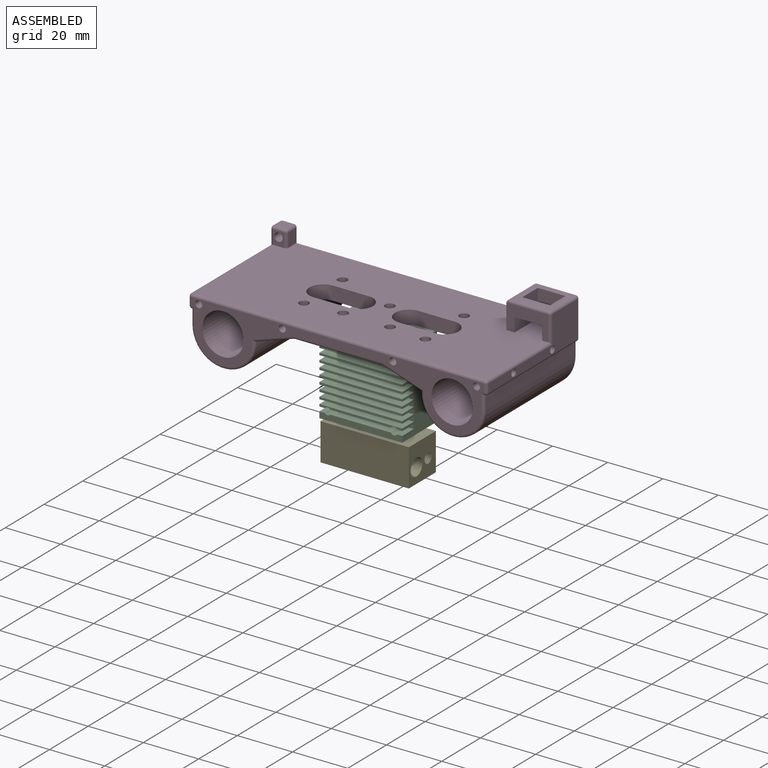
[diagram: assembled view]
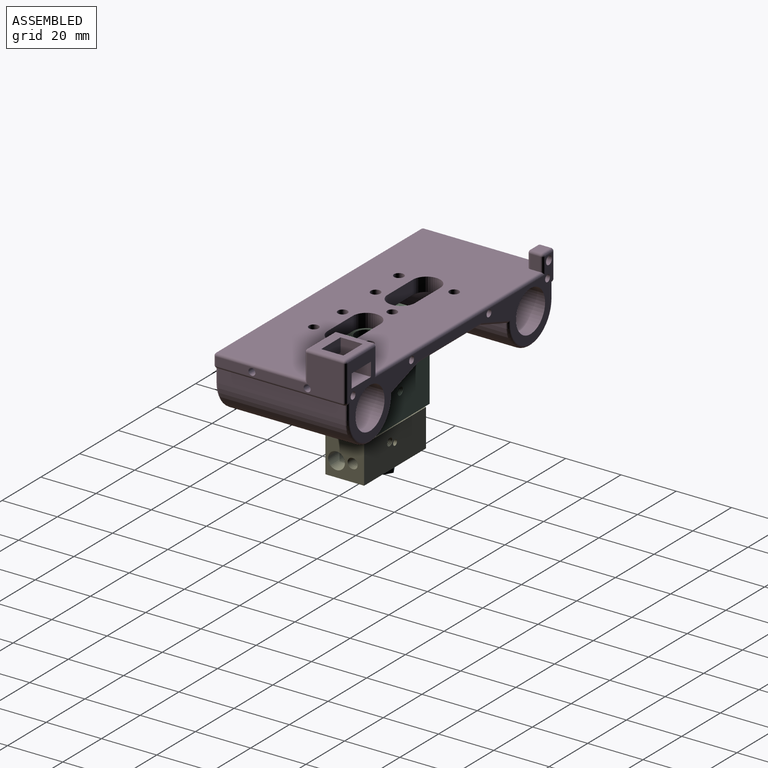
[diagram: assembled view, second angle]
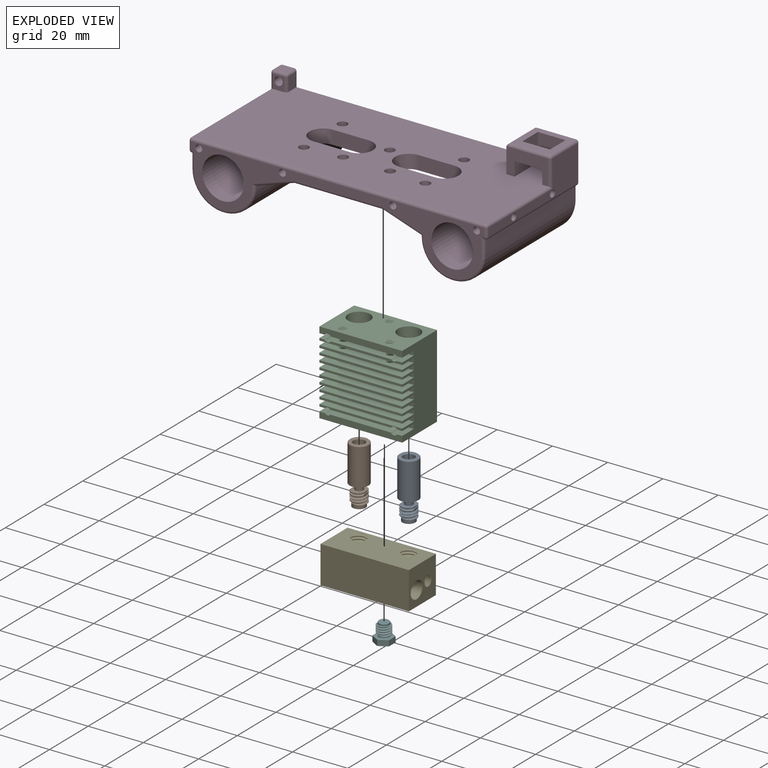
[diagram: exploded view]
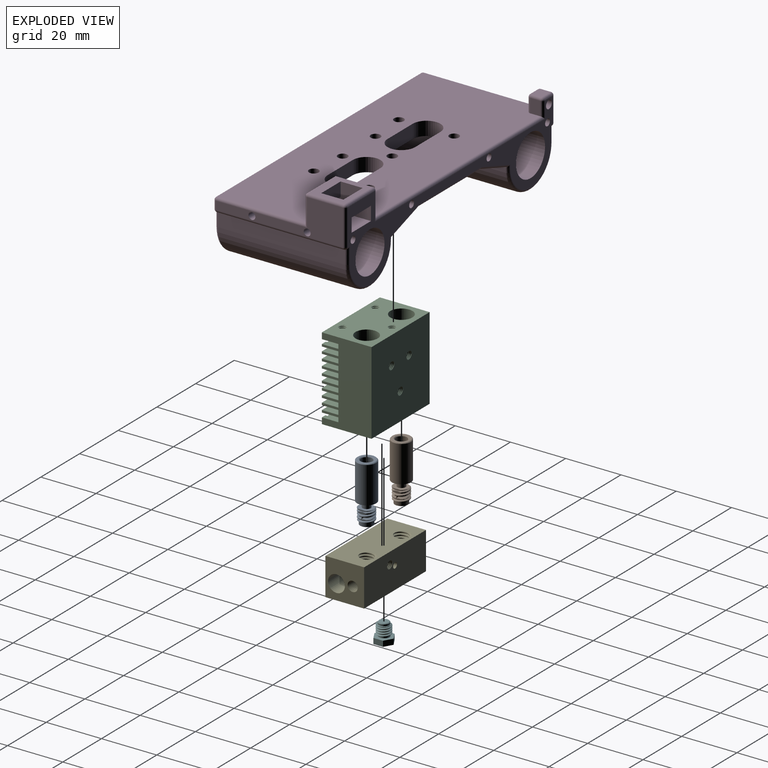
[diagram: exploded view, second angle]
ASSEMBLY  parts=6 mates=5
PART A: 30 faces, bbox 7.2x7.2x21.4 mm
  f0: plane 5.63x5.11mm, normal (0,0,1), area 14.5mm2, adj f2,f3,f6,f7,f11,f16,f17,f29
  f1: cylinder r=2.88mm len=5.76mm, axis (0,0,-1), area 13.9mm2, adj f5,f7,f12,f24,f25,f26,f28
  f2: cylinder r=2.88mm len=5mm, axis (0,0,-1), area 1.5mm2, adj f0,f5,f7,f27,f29
  f3: cylinder r=2.88mm len=0.59mm, axis (0,0,-1), area 0mm2, adj f0,f6,f29
  f4: cylinder r=2.88mm len=5mm, axis (0,0,-1), area 1.5mm2, adj f5,f7,f27,f28
  f5: bspline ~5.76x5.75mm, area 36.1mm2, adj f1,f2,f4,f6,f12,f13,f14,f15
  f6: bspline ~5.82x5.76mm, area 2.4mm2, adj f0,f3,f5,f16,f29
  f7: bspline ~5.76x5.75mm, area 35.7mm2, adj f0,f1,f2,f4,f13,f14,f15,f16
  f8: plane 6.4x6.4mm, normal (0,0,1), area 15.6mm2, adj f22,f23
  f9: cylinder r=3.45mm len=13.25mm, axis (0,0,-1), area 287.2mm2, adj f10,f22
  f10: plane 6.9x6.9mm, normal (0,0,-1), area 30.6mm2, adj f9,f11
  f11: cylinder r=1.47mm len=2.95mm, axis (0,0,-1), area 19.5mm2, adj f0,f10
  f12: plane 5.63x5.31mm, normal (0,0,-1), area 4.9mm2, adj f1,f5,f13,f24
  f13: cylinder r=2.34mm len=4.68mm, axis (0,0,-1), area 23.9mm2, adj f5,f7,f12,f14,f18,f24
  f14: cylinder r=2.34mm len=4.68mm, axis (0,0,-1), area 1.8mm2, adj f5,f7,f13,f15
  f15: cylinder r=2.34mm len=4.68mm, axis (0,0,-1), area 1.8mm2, adj f5,f7,f14,f16
  f16: cylinder r=2.34mm len=4.68mm, axis (0,0,-1), area 1.8mm2, adj f0,f5,f6,f7,f15,f17
  f17: cylinder r=2.34mm len=0.9mm, axis (0,0,-1), area 0mm2, adj f0,f7,f16
  f18: plane 4.68x4.68mm, normal (0,0,-1), area 14mm2, adj f13,f19
  f19: cylinder r=1mm len=16.49mm, axis (0,0,-1), area 103.6mm2, adj f18,f20
  f20: cone r=2.05mm half-angle=60deg, axis (0,0,1), area 11.6mm2, adj f19,f21
  f21: cylinder r=2.05mm len=4.1mm, axis (0,0,-1), area 48.3mm2, adj f20,f23
  f22: cone r=3.45mm half-angle=45deg, axis (0,0,-1), area 7.4mm2, adj f8,f9
  f23: cone r=2.3mm half-angle=45deg, axis (0,0,1), area 4.8mm2, adj f8,f21
  f24: bspline ~5.76x3.32mm, area 2.8mm2, adj f1,f7,f12,f13
  f25: plane 2.85x0.35mm, normal (-1,0,0), area 0.8mm2, adj f1,f7,f26
  f26: plane 2.85x0.38mm, normal (0,0,1), area 0.7mm2, adj f1,f25
  f27: plane 2.85x0.7mm, normal (-1,0,0), area 1.5mm2, adj f2,f4,f5,f7
  f28: plane 2.85x0.71mm, normal (1,0,0), area 1.5mm2, adj f1,f4,f5,f7
  f29: plane 2.85x0.35mm, normal (1,0,0), area 0.8mm2, adj f0,f2,f3,f5,f6
PART B: same geometry as A
PART C: 130 faces, bbox 30.1x18.3x30.4 mm
  f0: plane 30x18mm, normal (-1,0,0), area 434.4mm2, adj f1,f2,f3,f4,f5,f6,f7,f8
  f1: plane 30x0.8mm, normal (0,-1,0), area 22.4mm2, adj f0,f17,f66,f73,f77,f78,f79,f80
  f2: plane 30x0.8mm, normal (0,-1,0), area 24mm2, adj f0,f17,f63,f67
  f3: plane 30x0.8mm, normal (0,-1,0), area 24mm2, adj f0,f17,f120,f124
  f4: plane 30x0.8mm, normal (0,-1,0), area 24mm2, adj f0,f17,f117,f121
  f5: plane 30x0.8mm, normal (0,-1,0), area 24mm2, adj f0,f17,f114,f118
  f6: plane 30x0.8mm, normal (0,-1,0), area 24mm2, adj f0,f17,f111,f115
  f7: plane 30x0.8mm, normal (0,-1,0), area 22.4mm2, adj f0,f17,f94,f95,f101,f102,f103,f112
  f8: plane 30x2.2mm, normal (0,-1,0), area 64.4mm2, adj f0,f17,f18,f96,f97,f98,f99,f100
  f9: plane 30x0.8mm, normal (0,-1,0), area 24mm2, adj f0,f17,f105,f109
  f10: plane 30x0.8mm, normal (0,-1,0), area 24mm2, adj f0,f17,f64,f108
  f11: plane 30x0.8mm, normal (0,-1,0), area 24mm2, adj f0,f17,f106,f123
  f12: cylinder r=2.1mm len=6.52mm, axis (0,0,1), area 86mm2, adj f14,f41
  f13: cylinder r=2.1mm len=6.52mm, axis (0,0,1), area 86mm2, adj f15,f39
  f14: cone r=0mm half-angle=59deg, axis (0,0,1), area 42.5mm2, adj f12,f37
  f15: cone r=0mm half-angle=59deg, axis (0,0,1), area 42.5mm2, adj f13,f36
  f16: plane 30.14x18.14mm, normal (0,0,1), area 421.7mm2, adj f0,f17,f19,f20,f22,f23,f24,f27
  f17: plane 30x18mm, normal (1,0,0), area 434.4mm2, adj f1,f2,f3,f4,f5,f6,f7,f8
  f18: plane 30x18mm, normal (0,0,-1), area 463mm2, adj f0,f8,f17,f20,f38,f40
  f19: plane 30x2.2mm, normal (0,-1,0), area 64.4mm2, adj f0,f16,f17,f74,f75,f76,f81,f82
  f20: plane 30.14x30.14mm, normal (0,1,0), area 882.2mm2, adj f0,f16,f17,f18,f45,f46,f47,f50
  f21: cone r=0mm half-angle=59deg, axis (0,0,1), area 8.2mm2, adj f25,f26
  f22: bspline ~8.32x3.51mm, area 43.7mm2, adj f16,f24,f25,f26,f27
  f23: bspline ~8.41x3.51mm, area 43.5mm2, adj f16,f24,f25,f26,f27
  f24: bspline ~8.23x3.56mm, area 11.2mm2, adj f16,f22,f23,f25
  f25: plane 1.13x1.11mm, normal (0,0,1), area 0mm2, adj f21,f22,f23,f24
  f26: plane 3.12x3.12mm, normal (0,0,-1), area 1.2mm2, adj f21,f22,f23,f27
  f27: cylinder r=1.25mm len=8mm, axis (0,0,1), area 4.9mm2, adj f16,f22,f23,f26
  f28: bspline ~3.51x3.04mm, area 12mm2, adj f16,f30,f31,f74
  f29: bspline ~3.51x3.04mm, area 12mm2, adj f16,f30,f31,f74
  f30: bspline ~3.56x3.09mm, area 3.1mm2, adj f16,f28,f29,f74
  f31: cylinder r=1.25mm len=2.5mm, axis (0,0,1), area 4.4mm2, adj f16,f28,f29,f74
  f32: bspline ~3.51x3.04mm, area 12mm2, adj f16,f34,f35,f74
  f33: bspline ~3.51x3.04mm, area 12mm2, adj f16,f34,f35,f74
  f34: bspline ~3.56x3.09mm, area 3.1mm2, adj f16,f32,f33,f74
  f35: cylinder r=1.25mm len=2.5mm, axis (0,0,1), area 4.4mm2, adj f16,f32,f33,f74
  f36: cylinder r=4mm len=8mm, axis (0,0,1), area 188.5mm2, adj f15,f16
  f37: cylinder r=4mm len=8mm, axis (0,0,1), area 188.5mm2, adj f14,f16
  f38: cylinder r=3.5mm len=14mm, axis (0,0,-1), area 307.9mm2, adj f18,f39
  f39: cone r=0mm half-angle=59deg, axis (0,0,-1), area 28.7mm2, adj f13,f38
  f40: cylinder r=3.5mm len=14mm, axis (0,0,-1), area 307.9mm2, adj f18,f41
  f41: cone r=0mm half-angle=59deg, axis (0,0,-1), area 28.7mm2, adj f12,f40
  f42: cone r=0mm half-angle=59deg, axis (0,1,0), area 8.2mm2, adj f54,f55
  f43: cone r=0mm half-angle=59deg, axis (0,1,0), area 8.2mm2, adj f48,f49
  f44: cone r=0mm half-angle=59deg, axis (0,1,0), area 8.2mm2, adj f60,f61
  f45: bspline ~3.51x3.32mm, area 16.3mm2, adj f20,f47,f48,f49,f50
  f46: bspline ~3.51x3.41mm, area 16.3mm2, adj f20,f47,f48,f49,f50
  f47: bspline ~3.56x3.23mm, area 4.2mm2, adj f20,f45,f46,f48
  f48: plane 1.13x1.11mm, normal (0,1,0), area 0mm2, adj f43,f45,f46,f47
  f49: plane 3.12x3.12mm, normal (0,-1,0), area 1.2mm2, adj f43,f45,f46,f50
  f50: cylinder r=1.25mm len=3mm, axis (0,-1,0), area 6.1mm2, adj f20,f45,f46,f49
  f51: bspline ~3.51x3.32mm, area 16.3mm2, adj f20,f53,f54,f55,f56
  f52: bspline ~3.51x3.41mm, area 16.3mm2, adj f20,f53,f54,f55,f56
  f53: bspline ~3.56x3.23mm, area 4.2mm2, adj f20,f51,f52,f54
  f54: plane 1.13x1.11mm, normal (0,1,0), area 0mm2, adj f42,f51,f52,f53
  f55: plane 3.12x3.12mm, normal (0,-1,0), area 1.2mm2, adj f42,f51,f52,f56
  f56: cylinder r=1.25mm len=3mm, axis (0,-1,0), area 6.1mm2, adj f20,f51,f52,f55
  f57: bspline ~3.51x3.32mm, area 16.3mm2, adj f20,f59,f60,f61,f62
  f58: bspline ~3.51x3.41mm, area 16.3mm2, adj f20,f59,f60,f61,f62
  f59: bspline ~3.56x3.23mm, area 4.2mm2, adj f20,f57,f58,f60
  f60: plane 1.13x1.11mm, normal (0,1,0), area 0mm2, adj f44,f57,f58,f59
  f61: plane 3.12x3.12mm, normal (0,-1,0), area 1.2mm2, adj f44,f57,f58,f62
  f62: cylinder r=1.25mm len=3mm, axis (0,-1,0), area 6.1mm2, adj f20,f57,f58,f61
  f63: plane 30.14x6.14mm, normal (0,0,-1), area 168.1mm2, adj f0,f2,f17,f65,f84,f85,f86,f87
  f64: plane 30x6mm, normal (0,0,1), area 178.4mm2, adj f0,f10,f17,f65,f92,f93
  f65: plane 30x1.6mm, normal (0,-1,0), area 48mm2, adj f0,f17,f63,f64
  f66: plane 30.14x6.14mm, normal (0,0,-1), area 168.1mm2, adj f0,f1,f17,f68,f69,f70,f71,f72
  f67: plane 30.14x6.14mm, normal (0,0,1), area 168.1mm2, adj f0,f2,f17,f68,f84,f85,f86,f87
  f68: plane 30x1.6mm, normal (0,-1,0), area 48mm2, adj f0,f17,f66,f67
  f69: cylinder r=1.25mm len=2.5mm, axis (0,0,1), area 1.6mm2, adj f66,f71,f72,f73
  f70: bspline ~3.56x3.09mm, area 1.1mm2, adj f66,f71,f72,f73
  f71: bspline ~3.51x3.04mm, area 4.3mm2, adj f66,f69,f70,f73
  f72: bspline ~3.51x3.04mm, area 4.4mm2, adj f66,f69,f70,f73
  f73: plane 22.04x6.14mm, normal (0,0,1), area 119.5mm2, adj f1,f69,f70,f71,f72,f78,f79,f83
  f74: plane 22.03x6.14mm, normal (0,0,-1), area 119.5mm2, adj f19,f28,f29,f30,f31,f32,f33,f34
  f75: cylinder r=1.4mm len=6mm, axis (0,-1,0), area 16.2mm2, adj f19,f74,f76,f83
  f76: plane 6x1.85mm, normal (0,0,-1), area 11.1mm2, adj f0,f19,f75,f83
  f77: plane 6x1.85mm, normal (0,0,1), area 11.1mm2, adj f0,f1,f78,f83
  f78: cylinder r=1.4mm len=6mm, axis (0,-1,0), area 16.2mm2, adj f1,f73,f77,f83
  f79: cylinder r=1.25mm len=6mm, axis (0,-1,0), area 13.1mm2, adj f1,f73,f80,f83
  f80: plane 6x2.04mm, normal (0,0,1), area 12.2mm2, adj f1,f17,f79,f83
  f81: plane 6x2.04mm, normal (0,0,-1), area 12.2mm2, adj f17,f19,f82,f83
  f82: cylinder r=1.25mm len=6mm, axis (0,-1,0), area 13.1mm2, adj f19,f74,f81,f83
  f83: plane 30x2.8mm, normal (0,-1,0), area 51.1mm2, adj f0,f17,f73,f74,f75,f76,f77,f78
  f84: cylinder r=1.25mm len=2.5mm, axis (0,0,1), area 1.6mm2, adj f63,f67,f86,f87
  f85: bspline ~3.56x3.09mm, area 1.1mm2, adj f63,f67,f86,f87
  f86: bspline ~3.51x3.04mm, area 4.4mm2, adj f63,f67,f84,f85
  f87: bspline ~3.51x3.04mm, area 4.4mm2, adj f63,f67,f84,f85
  f88: cylinder r=1.25mm len=2.5mm, axis (0,0,1), area 1.6mm2, adj f66,f73,f90,f91
  f89: bspline ~3.56x3.09mm, area 1.1mm2, adj f66,f73,f90,f91
  f90: bspline ~3.51x3.04mm, area 4.3mm2, adj f66,f73,f88,f89
  f91: bspline ~3.51x3.04mm, area 4.4mm2, adj f66,f73,f88,f89
  f92: cone r=0mm half-angle=59deg, axis (0,0,1), area 0.9mm2, adj f64
  f93: cone r=0mm half-angle=59deg, axis (0,0,1), area 0.9mm2, adj f64
  f94: cylinder r=1.25mm len=6mm, axis (0,-1,0), area 13.1mm2, adj f7,f95,f103,f104
  f95: plane 6x2.04mm, normal (0,0,-1), area 12.2mm2, adj f0,f7,f94,f104
  f96: plane 6x2.04mm, normal (0,0,1), area 12.2mm2, adj f0,f8,f97,f104
  f97: cylinder r=1.25mm len=6mm, axis (0,-1,0), area 13.1mm2, adj f8,f96,f98,f104
  f98: plane 21.89x6mm, normal (0,0,1), area 131.3mm2, adj f8,f97,f99,f104
  f99: cylinder r=1.4mm len=6mm, axis (0,-1,0), area 16.2mm2, adj f8,f98,f100,f104
  f100: plane 6x1.85mm, normal (0,0,1), area 11.1mm2, adj f8,f17,f99,f104
  f101: plane 6x1.85mm, normal (0,0,-1), area 11.1mm2, adj f7,f17,f102,f104
  f102: cylinder r=1.4mm len=6mm, axis (0,-1,0), area 16.2mm2, adj f7,f101,f103,f104
  f103: plane 21.89x6mm, normal (0,0,-1), area 131.3mm2, adj f7,f94,f102,f104
  f104: plane 30x2.8mm, normal (0,-1,0), area 51.1mm2, adj f0,f17,f94,f95,f96,f97,f98,f99
  f105: plane 30x6mm, normal (0,0,-1), area 180mm2, adj f0,f9,f17,f107
  f106: plane 30x6mm, normal (0,0,1), area 180mm2, adj f0,f11,f17,f107
  f107: plane 30x1.6mm, normal (0,-1,0), area 48mm2, adj f0,f17,f105,f106
  f108: plane 30x6mm, normal (0,0,-1), area 180mm2, adj f0,f10,f17,f110
  f109: plane 30x6mm, normal (0,0,1), area 180mm2, adj f0,f9,f17,f110
  f110: plane 30x1.6mm, normal (0,-1,0), area 48mm2, adj f0,f17,f108,f109
  f111: plane 30x6mm, normal (0,0,-1), area 180mm2, adj f0,f6,f17,f113
  f112: plane 30x6mm, normal (0,0,1), area 180mm2, adj f0,f7,f17,f113
  f113: plane 30x1.6mm, normal (0,-1,0), area 48mm2, adj f0,f17,f111,f112
  f114: plane 30x6mm, normal (0,0,-1), area 180mm2, adj f0,f5,f17,f116
  f115: plane 30x6mm, normal (0,0,1), area 180mm2, adj f0,f6,f17,f116
  f116: plane 30x1.6mm, normal (0,-1,0), area 48mm2, adj f0,f17,f114,f115
  f117: plane 30x6mm, normal (0,0,-1), area 180mm2, adj f0,f4,f17,f119
  f118: plane 30x6mm, normal (0,0,1), area 180mm2, adj f0,f5,f17,f119
  f119: plane 30x1.6mm, normal (0,-1,0), area 48mm2, adj f0,f17,f117,f118
  f120: plane 30x6mm, normal (0,0,-1), area 180mm2, adj f0,f3,f17,f122
  f121: plane 30x6mm, normal (0,0,1), area 180mm2, adj f0,f4,f17,f122
  f122: plane 30x1.6mm, normal (0,-1,0), area 48mm2, adj f0,f17,f120,f121
  f123: plane 30x6mm, normal (0,0,-1), area 180mm2, adj f0,f11,f17,f125
  f124: plane 30x6mm, normal (0,0,1), area 180mm2, adj f0,f3,f17,f125
  f125: plane 30x1.6mm, normal (0,-1,0), area 48mm2, adj f0,f17,f123,f124
  f126: cylinder r=1.25mm len=2.5mm, axis (0,0,1), area 1.6mm2, adj f63,f67,f128,f129
  f127: bspline ~3.56x3.09mm, area 1.1mm2, adj f63,f67,f128,f129
  f128: bspline ~3.51x3.04mm, area 4.4mm2, adj f63,f67,f126,f127
  f129: bspline ~3.51x3.04mm, area 4.4mm2, adj f63,f67,f126,f127
PART D: 136 faces, bbox 108x32.4x48 mm
  f0: cylinder r=1.75mm len=5mm, axis (0,1,0), area 55mm2, adj f22,f23
  f1: cylinder r=1.75mm len=5mm, axis (0,1,0), area 55mm2, adj f22,f23
  f2: cylinder r=1.75mm len=5mm, axis (0,1,0), area 55mm2, adj f22,f23
  f3: cylinder r=1.75mm len=5mm, axis (0,1,0), area 55mm2, adj f22,f23
  f4: cylinder r=1.75mm len=5mm, axis (0,1,0), area 55mm2, adj f22,f23
  f5: cylinder r=1.75mm len=5mm, axis (0,1,0), area 55mm2, adj f22,f23
  f6: cylinder r=1.75mm len=5mm, axis (0,1,0), area 55mm2, adj f22,f23
  f7: cylinder r=1.25mm len=5mm, axis (1,0,0), area 39.3mm2, adj f24,f127
  f8: cylinder r=1.25mm len=5mm, axis (1,0,0), area 39.3mm2, adj f24,f126
  f9: cylinder r=1.25mm len=5mm, axis (-1,0,0), area 39.3mm2, adj f29,f125
  f10: cylinder r=1.25mm len=5mm, axis (-1,0,0), area 39.3mm2, adj f29,f124
  f11: cylinder r=1.25mm len=3.73mm, axis (0,0,1), area 29.3mm2, adj f25,f61
  f12: cylinder r=1.25mm len=3.73mm, axis (0,0,1), area 29.3mm2, adj f25,f60
  f13: cylinder r=1.25mm len=10mm, axis (0,0,-1), area 78.5mm2, adj f26,f59
  f14: cylinder r=1.25mm len=10mm, axis (0,0,-1), area 78.5mm2, adj f26,f58
  f15: cylinder r=1.25mm len=3.73mm, axis (0,0,-1), area 29.3mm2, adj f26,f53
  f16: cylinder r=1.25mm len=3.73mm, axis (0,0,-1), area 29.3mm2, adj f26,f52
  f17: cylinder r=1.25mm len=10mm, axis (0,0,1), area 78.5mm2, adj f25,f51
  f18: cylinder r=1.25mm len=10mm, axis (0,0,1), area 78.5mm2, adj f25,f50
  f19: cylinder r=1.5mm len=5.73mm, axis (0,0,-1), area 54mm2, adj f26,f41
  f20: cylinder r=7.5mm len=48mm, axis (0,0,-1), area 2261.9mm2, adj f25,f26
  f21: cylinder r=7.5mm len=48mm, axis (0,0,-1), area 2261.9mm2, adj f25,f26
  f22: plane 60x46mm, normal (0,-1,0), area 2166.3mm2, adj f0,f1,f2,f3,f4,f5,f6,f27
  f23: plane 106x47mm, normal (0,1,0), area 4308.2mm2, adj f0,f1,f2,f3,f4,f5,f6,f26
  f24: plane 46x13mm, normal (1,0,0), area 258.2mm2, adj f7,f8,f92,f97,f102,f103,f109,f110
  f25: plane 106x19.5mm, normal (0,0,1), area 616.7mm2, adj f11,f12,f17,f18,f20,f21,f89,f100
  f26: plane 106x29.5mm, normal (0,0,-1), area 723.6mm2, adj f13,f14,f15,f16,f19,f20,f21,f23
  f27: plane 46x5mm, normal (1,0,0), area 211.8mm2, adj f22,f31,f46,f47,f54,f55,f65,f111
  f28: plane 46x5mm, normal (-1,0,0), area 211.8mm2, adj f22,f32,f48,f49,f56,f57,f87,f119
  f29: plane 46x9mm, normal (-1,0,0), area 150.5mm2, adj f9,f10,f73,f78,f84,f88,f89,f90
  f30: plane 46x5mm, normal (-1,0,0), area 230mm2, adj f31,f71,f88,f105
  f31: cylinder r=11.5mm len=46mm, axis (0,0,-1), area 1661.9mm2, adj f27,f30,f66,f108
  f32: cylinder r=11.5mm len=46mm, axis (0,0,-1), area 1661.9mm2, adj f28,f33,f94,f118
  f33: plane 46x5mm, normal (1,0,0), area 230mm2, adj f32,f99,f110,f116
  f34: plane 14x9mm, normal (-1,0,0), area 126mm2, adj f23,f35,f80,f81
  f35: plane 15x9mm, normal (0,0,1), area 85mm2, adj f23,f34,f36,f38,f45,f85,f97
  f36: plane 15x10mm, normal (-1,0,0), area 115mm2, adj f23,f26,f35,f37,f39,f40,f44,f45
  f37: plane 10x5mm, normal (0,0,-1), area 50mm2, adj f36,f38,f40,f45
  f38: plane 15x10mm, normal (1,0,0), area 115mm2, adj f23,f26,f35,f37,f39,f40,f44,f45
  f39: plane 10x5mm, normal (0,0,1), area 50mm2, adj f36,f38,f40,f44
  f40: plane 14x13mm, normal (0,1,0), area 102mm2, adj f36,f37,f38,f39,f80,f85,f92,f93
  f41: plane 5x4mm, normal (0,0,1), area 12.9mm2, adj f19,f23,f63,f74,f84
  f42: plane 5x3.73mm, normal (1,0,0), area 18.6mm2, adj f23,f62,f63,f69
  f43: plane 4x3.73mm, normal (0,1,0), area 14.9mm2, adj f62,f67,f73,f74
  f44: plane 10x3mm, normal (0,-1,0), area 30mm2, adj f26,f36,f38,f39
  f45: plane 10x4mm, normal (0,-1,0), area 40mm2, adj f35,f36,f37,f38
  f46: plane 14x4.67mm, normal (0.32,-0.95,0), area 14.8mm2, adj f22,f27,f113,f122
  f47: plane 10.84x3.61mm, normal (0,0,-1), area 19.6mm2, adj f22,f27,f122
  f48: plane 14x4.67mm, normal (-0.32,-0.95,0), area 14.8mm2, adj f22,f28,f117,f123
  f49: plane 10.84x3.61mm, normal (0,0,-1), area 19.6mm2, adj f22,f28,f123
  f50: plane 2.5x2.5mm, normal (0,0,1), area 4.9mm2, adj f18
  f51: plane 2.5x2.5mm, normal (0,0,1), area 4.9mm2, adj f17
  f52: plane 2.5x2.5mm, normal (0,0,-1), area 4.9mm2, adj f16
  f53: plane 2.5x2.5mm, normal (0,0,-1), area 4.9mm2, adj f15
  f54: plane 14x4.67mm, normal (0.32,-0.95,0), area 14.8mm2, adj f22,f27,f70,f120
  f55: plane 10.84x3.61mm, normal (0,0,1), area 19.6mm2, adj f22,f27,f120
  f56: plane 14x4.67mm, normal (-0.32,-0.95,0), area 14.8mm2, adj f22,f28,f82,f121
  f57: plane 10.84x3.61mm, normal (0,0,1), area 19.6mm2, adj f22,f28,f121
  f58: plane 2.5x2.5mm, normal (0,0,-1), area 4.9mm2, adj f14
  f59: plane 2.5x2.5mm, normal (0,0,-1), area 4.9mm2, adj f13
  f60: plane 2.5x2.5mm, normal (0,0,1), area 4.9mm2, adj f12
  f61: plane 2.5x2.5mm, normal (0,0,1), area 4.9mm2, adj f11
  f62: cylinder r=1mm len=3.73mm, axis (0,0,1), area 5.9mm2, adj f42,f43,f64,f68
  f63: cylinder r=1mm len=5mm, axis (0,1,0), area 7.9mm2, adj f23,f41,f42,f68
  f64: sphere r=1mm, area 1.6mm2, adj f62,f67,f69
  f65: cylinder r=1mm len=1.05mm, axis (0,1,0), area 0.9mm2, adj f26,f27,f66,f70
  f66: torus R=10.5mm, axis (0,0,1), area 55mm2, adj f26,f31,f65,f71
  f67: cylinder r=1mm len=4mm, axis (1,0,0), area 6.3mm2, adj f26,f43,f64,f72
  f68: sphere r=1mm, area 1.6mm2, adj f62,f63,f74
  f69: cylinder r=1mm len=6mm, axis (0,-1,0), area 8.4mm2, adj f26,f42,f64,f75
  f70: cylinder r=1mm len=15.15mm, axis (0.95,0.32,0), area 23.7mm2, adj f26,f54,f65,f76
  f71: cylinder r=1mm len=6mm, axis (0,-1,0), area 8.4mm2, adj f26,f30,f66,f77
  f72: sphere r=1mm, area 1.6mm2, adj f67,f73,f78
  f73: cylinder r=1mm len=3.73mm, axis (0,0,-1), area 5.9mm2, adj f29,f43,f72,f79
  f74: cylinder r=1mm len=4mm, axis (-1,0,0), area 6.3mm2, adj f41,f43,f68,f79
  f75: cylinder r=1mm len=88mm, axis (-1,0,0), area 136.2mm2, adj f23,f26,f69,f81
  f76: cylinder r=1mm len=32.32mm, axis (1,0,0), area 50.5mm2, adj f22,f26,f70,f82
  f77: cylinder r=1mm len=1mm, axis (1,0,0), area 0.6mm2, adj f26,f71,f83
  f78: cylinder r=1mm len=9mm, axis (0,-1,0), area 14.1mm2, adj f26,f29,f72,f83
  f79: sphere r=1mm, area 1.6mm2, adj f73,f74,f84
  f80: cylinder r=1mm len=14mm, axis (0,0,-1), area 21.4mm2, adj f34,f40,f85,f86
  f81: cylinder r=1mm len=10mm, axis (0,1,0), area 14.7mm2, adj f26,f34,f75,f86
  f82: cylinder r=1mm len=15.15mm, axis (0.95,-0.32,0), area 23.7mm2, adj f26,f56,f76,f87
  f83: sphere r=1mm, area 1.6mm2, adj f77,f78,f88
  f84: cylinder r=1mm len=6mm, axis (0,1,0), area 8.4mm2, adj f29,f41,f79,f90
  f85: cylinder r=1mm len=15mm, axis (-1,0,0), area 23mm2, adj f35,f40,f80,f91
  f86: sphere r=1mm, area 1.6mm2, adj f80,f81,f93
  f87: cylinder r=1mm len=1.05mm, axis (0,-1,0), area 0.9mm2, adj f26,f28,f82,f94
  f88: cylinder r=1mm len=46mm, axis (0,0,-1), area 72.3mm2, adj f29,f30,f83,f95
  f89: cylinder r=1mm len=3mm, axis (0,-1,0), area 4.7mm2, adj f25,f29,f95,f96
  f90: cylinder r=1mm len=42.27mm, axis (0,0,1), area 65.4mm2, adj f23,f29,f84,f96
  f91: sphere r=1mm, area 1.6mm2, adj f85,f92,f97
  f92: cylinder r=1mm len=13mm, axis (0,0,1), area 20.4mm2, adj f24,f40,f91,f98
  f93: cylinder r=1mm len=14mm, axis (1,0,0), area 22mm2, adj f26,f40,f86,f98
  f94: torus R=10.5mm, axis (0,0,1), area 55mm2, adj f26,f32,f87,f99
  f95: sphere r=1mm, area 1.6mm2, adj f88,f89,f100
  f96: sphere r=1mm, area 1.6mm2, adj f89,f90,f101
  f97: cylinder r=1mm len=10mm, axis (0,-1,0), area 14.7mm2, adj f24,f35,f91,f102
  f98: sphere r=1mm, area 1.6mm2, adj f92,f93,f103
  f99: cylinder r=1mm len=6mm, axis (0,1,0), area 8.4mm2, adj f26,f33,f94,f104
  f100: cylinder r=1mm len=1mm, axis (-1,0,0), area 0.6mm2, adj f25,f95,f105
  f101: cylinder r=1mm len=106mm, axis (1,0,0), area 166.5mm2, adj f23,f25,f96,f106
  f102: cylinder r=1mm len=33mm, axis (0,0,-1), area 50.8mm2, adj f23,f24,f97,f106
  f103: cylinder r=1mm len=13mm, axis (0,-1,0), area 20.4mm2, adj f24,f26,f98,f107
  f104: cylinder r=1mm len=1mm, axis (1,0,0), area 0.6mm2, adj f26,f99,f107
  f105: cylinder r=1mm len=6mm, axis (0,-1,0), area 8.4mm2, adj f25,f30,f100,f108
  f106: sphere r=1mm, area 1.6mm2, adj f101,f102,f109
  f107: sphere r=1mm, area 1.6mm2, adj f103,f104,f110
  f108: torus R=10.5mm, axis (0,0,-1), area 55mm2, adj f25,f31,f105,f111
  f109: cylinder r=1mm len=3mm, axis (0,-1,0), area 4.7mm2, adj f24,f25,f106,f112
  f110: cylinder r=1mm len=46mm, axis (0,0,1), area 72.3mm2, adj f24,f33,f107,f112
  f111: cylinder r=1mm len=1.05mm, axis (0,1,0), area 0.9mm2, adj f25,f27,f108,f113
  f112: sphere r=1mm, area 1.6mm2, adj f109,f110,f114
  f113: cylinder r=1mm len=15.15mm, axis (-0.95,-0.32,0), area 23.7mm2, adj f25,f46,f111,f115
  f114: cylinder r=1mm len=1mm, axis (-1,0,0), area 0.6mm2, adj f25,f112,f116
  f115: cylinder r=1mm len=32.32mm, axis (-1,0,0), area 50.5mm2, adj f22,f25,f113,f117
  f116: cylinder r=1mm len=6mm, axis (0,1,0), area 8.4mm2, adj f25,f33,f114,f118
  f117: cylinder r=1mm len=15.15mm, axis (-0.95,0.32,0), area 23.7mm2, adj f25,f48,f115,f119
  f118: torus R=10.5mm, axis (0,0,-1), area 55mm2, adj f25,f32,f116,f119
  f119: cylinder r=1mm len=1.05mm, axis (0,-1,0), area 0.9mm2, adj f25,f28,f117,f118
  f120: cylinder r=1mm len=14.32mm, axis (0.95,0.32,0), area 21.3mm2, adj f22,f27,f54,f55
  f121: cylinder r=1mm len=14.32mm, axis (0.95,-0.32,0), area 21.3mm2, adj f22,f28,f56,f57
  f122: cylinder r=1mm len=14.32mm, axis (-0.95,-0.32,0), area 21.3mm2, adj f22,f27,f46,f47
  f123: cylinder r=1mm len=14.32mm, axis (-0.95,0.32,0), area 21.3mm2, adj f22,f28,f48,f49
  f124: plane 2.5x2.5mm, normal (-1,0,0), area 4.9mm2, adj f10
  f125: plane 2.5x2.5mm, normal (-1,0,0), area 4.9mm2, adj f9
  f126: plane 2.5x2.5mm, normal (1,0,0), area 4.9mm2, adj f8
  f127: plane 2.5x2.5mm, normal (1,0,0), area 4.9mm2, adj f7
  f128: cylinder r=5mm len=10mm, axis (0,1,0), area 78.5mm2, adj f22,f23,f129,f131
  f129: plane 13x5mm, normal (0,0,1), area 65mm2, adj f22,f23,f128,f130
  f130: cylinder r=5mm len=10mm, axis (0,1,0), area 78.5mm2, adj f22,f23,f129,f131
  f131: plane 13x5mm, normal (0,0,-1), area 65mm2, adj f22,f23,f128,f130
  f132: cylinder r=5mm len=10mm, axis (0,1,0), area 78.5mm2, adj f22,f23,f133,f135
  f133: plane 13x5mm, normal (0,0,1), area 65mm2, adj f22,f23,f132,f134
  f134: cylinder r=5mm len=10mm, axis (0,1,0), area 78.5mm2, adj f22,f23,f133,f135
  f135: plane 13x5mm, normal (0,0,-1), area 65mm2, adj f22,f23,f132,f134
PART E: 67 faces, bbox 32.8x14.5x14.5 mm
  f0: plane 32.14x13.64mm, normal (0,1,0), area 422.9mm2, adj f1,f53,f54,f55,f56,f60,f64,f65
  f1: plane 14.2x13.7mm, normal (1,0,0), area 149.3mm2, adj f0,f2,f3,f41,f42,f43,f44,f53
  f2: plane 32x13.5mm, normal (0,-1,0), area 432mm2, adj f1,f53,f54,f55
  f3: bspline ~4.69x4.54mm, area 28.9mm2, adj f1,f4,f40,f41,f43
  f4: plane 1.77x1.12mm, normal (1,0,0), area 0.1mm2, adj f3,f5,f42,f43
  f5: cone r=0mm half-angle=59deg, axis (1,0,0), area 8.9mm2, adj f4,f6,f40
  f6: cylinder r=1.25mm len=2.5mm, axis (1,0,0), area 8.2mm2, adj f5,f7
  f7: plane 2.5x2.5mm, normal (1,0,0), area 1.8mm2, adj f6,f8
  f8: cylinder r=1mm len=6.5mm, axis (1,0,0), area 37.3mm2, adj f7,f9,f34
  f9: cone r=0mm half-angle=59deg, axis (1,0,0), area 1.6mm2, adj f8,f10
  f10: cylinder r=0.75mm len=7.7mm, axis (-1,0,0), area 34.3mm2, adj f9,f11,f17
  f11: cylinder r=0.75mm len=2mm, axis (0,0,-1), area 7.4mm2, adj f10,f12
  f12: plane 4.81x4.8mm, normal (0,0,-1), area 14.8mm2, adj f11,f13,f14,f15,f16
  f13: bspline ~5.93x5.14mm, area 9.3mm2, adj f12,f14,f16,f55
  f14: bspline ~5.85x5.07mm, area 36.4mm2, adj f12,f13,f15,f55
  f15: cylinder r=2.1mm len=4.2mm, axis (0,0,1), area 12.8mm2, adj f12,f14,f16,f55
  f16: bspline ~5.85x5.07mm, area 36.4mm2, adj f12,f13,f15,f55
  f17: cone r=0mm half-angle=59deg, axis (-1,0,0), area 1.6mm2, adj f10,f18
  f18: cylinder r=1mm len=6.5mm, axis (-1,0,0), area 37.3mm2, adj f17,f19,f25
  f19: cylinder r=1mm len=3.5mm, axis (0,0,1), area 18.4mm2, adj f18,f20
  f20: plane 5.76x5.75mm, normal (0,0,1), area 20.6mm2, adj f19,f21,f22,f23,f24
  f21: bspline ~7.13x6.17mm, area 11.1mm2, adj f20,f22,f24,f53
  f22: bspline ~7.02x6.08mm, area 43.6mm2, adj f20,f21,f23,f53
  f23: cylinder r=2.5mm len=5mm, axis (0,0,-1), area 15.8mm2, adj f20,f22,f24,f53
  f24: bspline ~7.02x6.08mm, area 43.6mm2, adj f20,f21,f23,f53
  f25: plane 2.5x2.5mm, normal (-1,0,0), area 1.8mm2, adj f18,f26
  f26: cylinder r=1.25mm len=2.5mm, axis (-1,0,0), area 8.2mm2, adj f25,f27
  f27: cone r=0mm half-angle=59deg, axis (-1,0,0), area 8.9mm2, adj f26,f28,f33
  f28: plane 1.77x1.12mm, normal (-1,0,0), area 0.1mm2, adj f27,f29,f31,f32
  f29: bspline ~4.69x4.54mm, area 28.9mm2, adj f28,f30,f31,f33,f54
  f30: cylinder r=1.65mm len=4mm, axis (1,0,0), area 10.2mm2, adj f29,f32,f33,f54
  f31: bspline ~4.76x4.29mm, area 7.4mm2, adj f28,f29,f32,f54
  f32: bspline ~4.69x4.54mm, area 28.9mm2, adj f28,f30,f31,f33,f54
  f33: plane 4.17x4.17mm, normal (1,0,0), area 2.2mm2, adj f27,f29,f30,f32
  f34: cylinder r=1mm len=3.5mm, axis (0,0,1), area 18.4mm2, adj f8,f35
  f35: plane 5.76x5.75mm, normal (0,0,1), area 20.6mm2, adj f34,f36,f37,f38,f39
  f36: bspline ~7.13x6.17mm, area 11.1mm2, adj f35,f37,f39,f53
  f37: bspline ~7.02x6.08mm, area 43.6mm2, adj f35,f36,f38,f53
  f38: cylinder r=2.5mm len=5mm, axis (0,0,-1), area 15.8mm2, adj f35,f37,f39,f53
  f39: bspline ~7.02x6.08mm, area 43.6mm2, adj f35,f36,f38,f53
  f40: plane 4.17x4.17mm, normal (-1,0,0), area 2.2mm2, adj f3,f5,f41,f42
  f41: cylinder r=1.65mm len=4mm, axis (-1,0,0), area 10.2mm2, adj f1,f3,f40,f42
  f42: bspline ~4.69x4.54mm, area 28.9mm2, adj f1,f4,f40,f41,f43
  f43: bspline ~4.76x4.29mm, area 7.4mm2, adj f1,f3,f4,f42
  f44: cylinder r=3.05mm len=32mm, axis (-1,0,0), area 607.1mm2, adj f1,f45,f46,f47,f48,f49,f50,f51
  f45: bspline ~3.04x1.76mm, area 0mm2, adj f44,f46
  f46: bspline ~3.56x3.09mm, area 3.7mm2, adj f44,f45,f47,f52,f55
  f47: bspline ~3.51x3.04mm, area 13.7mm2, adj f44,f46,f51,f55
  f48: bspline ~0.59x0.07mm, area 0mm2, adj f44,f49
  f49: bspline ~2.32x1.78mm, area 0.1mm2, adj f44,f48,f50
  f50: bspline ~2.28x1.76mm, area 0.5mm2, adj f44,f49,f51
  f51: cylinder r=1.25mm len=2.66mm, axis (0,0,1), area 5.2mm2, adj f44,f47,f50,f52,f55
  f52: bspline ~3.51x3.04mm, area 13.8mm2, adj f44,f46,f51,f55
  f53: plane 32.29x14.29mm, normal (0,0,1), area 400.6mm2, adj f0,f1,f2,f21,f22,f23,f24,f36
  f54: plane 14.2x13.7mm, normal (-1,0,0), area 149.3mm2, adj f0,f2,f29,f30,f31,f32,f44,f53
  f55: plane 32.23x14.23mm, normal (0,0,-1), area 425.5mm2, adj f0,f1,f2,f13,f14,f15,f16,f46
  f56: cylinder r=1mm len=2mm, axis (0,1,0), area 12.6mm2, adj f0,f57
  f57: plane 2x2mm, normal (0,1,0), area 1.4mm2, adj f56,f58
  f58: cylinder r=0.75mm len=2.5mm, axis (0,1,0), area 11.8mm2, adj f57,f59
  f59: cone r=0mm half-angle=59deg, axis (0,1,0), area 2.1mm2, adj f58
  f60: bspline ~3.91x3.51mm, area 19.1mm2, adj f0,f61,f63,f64,f66
  f61: plane 3.12x3.12mm, normal (0,-1,0), area 1.2mm2, adj f60,f62,f64,f65
  f62: cone r=0mm half-angle=59deg, axis (0,1,0), area 8.2mm2, adj f61,f63
  f63: plane 1.13x1.11mm, normal (0,1,0), area 0mm2, adj f60,f62,f65,f66
  f64: cylinder r=1.25mm len=3.5mm, axis (0,-1,0), area 7.7mm2, adj f0,f60,f61,f65
  f65: bspline ~3.82x3.51mm, area 19mm2, adj f0,f61,f63,f64,f66
  f66: bspline ~3.73x3.56mm, area 4.9mm2, adj f0,f60,f63,f65
PART F: 22 faces, bbox 6.2x7.1x8 mm
  f0: plane 4.76x4.73mm, normal (0,0,-1), area 4.6mm2, adj f14,f15,f19,f20,f21
  f1: plane 3x2mm, normal (0.5,-0.87,0), area 6.9mm2, adj f2,f6,f7,f8
  f2: plane 3.46x2mm, normal (1,0,0), area 6.9mm2, adj f1,f3,f7,f8
  f3: plane 3x2mm, normal (0.5,0.87,0), area 6.9mm2, adj f2,f4,f7,f8
  f4: plane 3x2mm, normal (-0.5,0.87,0), area 6.9mm2, adj f3,f5,f7,f8
  f5: plane 3.46x2mm, normal (-1,0,0), area 6.9mm2, adj f4,f6,f7,f8
  f6: plane 3x2mm, normal (-0.5,-0.87,0), area 6.9mm2, adj f1,f5,f7,f8
  f7: plane 6.93x6mm, normal (0,0,-1), area 28.2mm2, adj f1,f2,f3,f4,f5,f6,f9
  f8: plane 6.93x6mm, normal (0,0,1), area 17.3mm2, adj f1,f2,f3,f4,f5,f6,f18
  f9: cone r=0.98mm half-angle=30deg, axis (0,0,1), area 5mm2, adj f7,f10
  f10: plane 0.8x0.8mm, normal (0,0,-1), area 0.4mm2, adj f9,f16
  f11: plane 3.4x3.4mm, normal (0,0,1), area 9mm2, adj f16,f17
  f12: cylinder r=1.9mm len=3.8mm, axis (0,0,1), area 7.2mm2, adj f13,f17
  f13: plane 4.76x4.73mm, normal (0,0,1), area 4.6mm2, adj f12,f14,f19,f20,f21
  f14: cylinder r=2.5mm len=5mm, axis (0,0,1), area 7.2mm2, adj f0,f13,f20,f21
  f15: cylinder r=1.9mm len=3.8mm, axis (0,0,1), area 7.2mm2, adj f0,f18
  f16: cylinder r=0.2mm len=7.8mm, axis (0,0,1), area 9.8mm2, adj f10,f11
  f17: cone r=1.7mm half-angle=45deg, axis (0,0,-1), area 3.2mm2, adj f11,f12
  f18: torus R=2.1mm, axis (0,0,1), area 3.9mm2, adj f8,f15
  f19: bspline ~4.77x4.13mm, area 11.5mm2, adj f0,f13,f20,f21
  f20: bspline ~5.77x5mm, area 28.7mm2, adj f0,f13,f14,f19
  f21: bspline ~5.77x5mm, area 28.7mm2, adj f0,f13,f14,f19
PLACE A t=(-9.32,13.44,3.06)mm
PLACE B t=(-27.32,13.44,3.06)mm
PLACE C t=(-18.32,19.44,25.66)mm fixed
PLACE D rot(axis=(1,0,0),90deg) t=(-18.32,13.44,40.66)mm
PLACE E t=(-18.32,10.44,-4.84)mm
PLACE F t=(-18.32,13.44,-4.84)mm
MATE fastened C.f41 <-> A.f1  axis (0,0,-1) through (-9.32,13.44,10.66)mm
MATE fastened B.f1 <-> C.f39  axis (0,0,-1) through (-27.32,13.44,10.66)mm
MATE fastened C.f21 <-> D.f6  axis (0,0,1) through (-18.32,16.44,40.66)mm
MATE fastened E.f34 <-> A.f1  axis (0,0,1) through (-9.32,13.44,4.66)mm
MATE fastened F.f9 <-> E.f11  axis (0,0,1) through (-18.32,13.44,-4.84)mm
